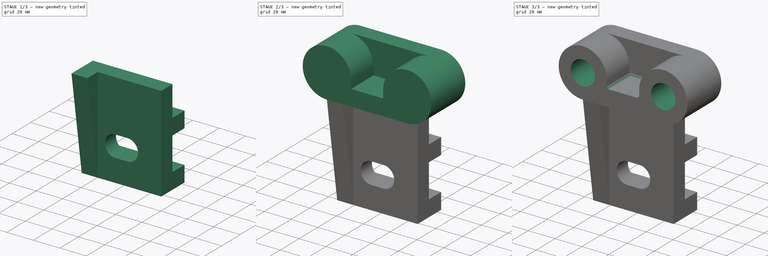
[diagram: build sequence overview — one tinted view per stage of 3, left to right]
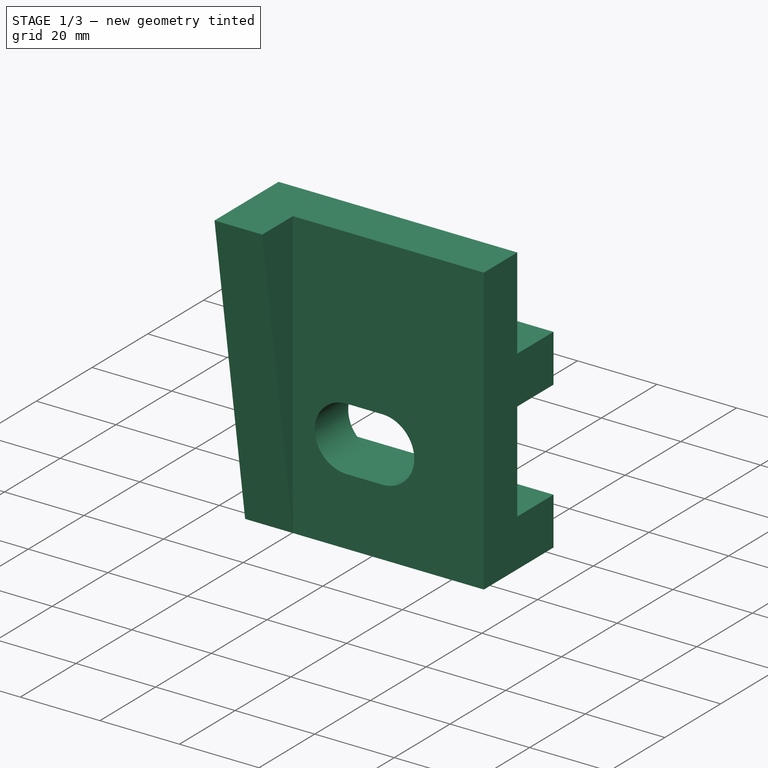
[diagram: stage 1 of 3 — iso view after this stage's code; geometry added in this stage tinted green]
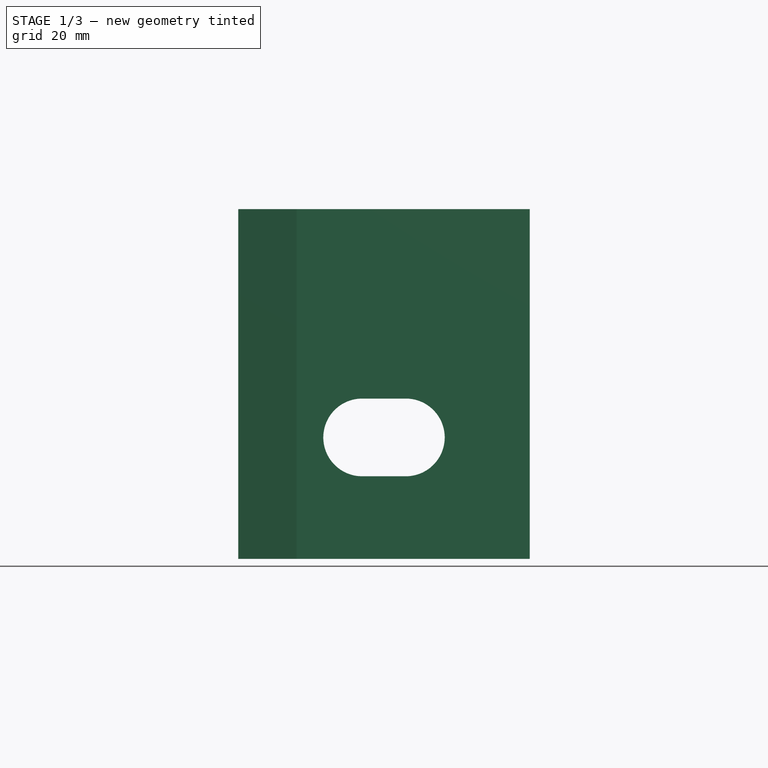
[diagram: stage 1 of 3 — front view after this stage's code; geometry added in this stage tinted green]
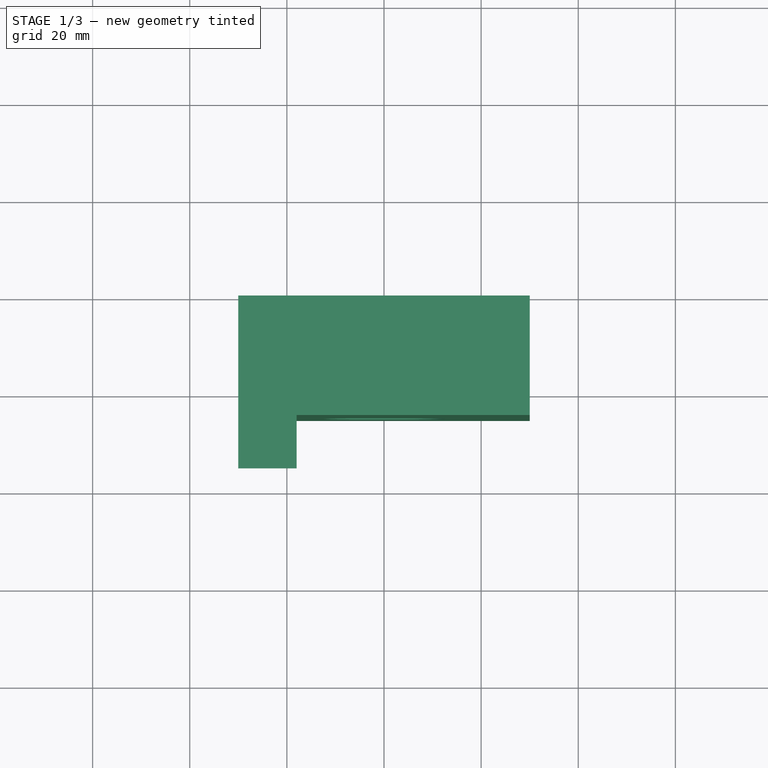
[diagram: stage 1 of 3 — top view after this stage's code; geometry added in this stage tinted green]
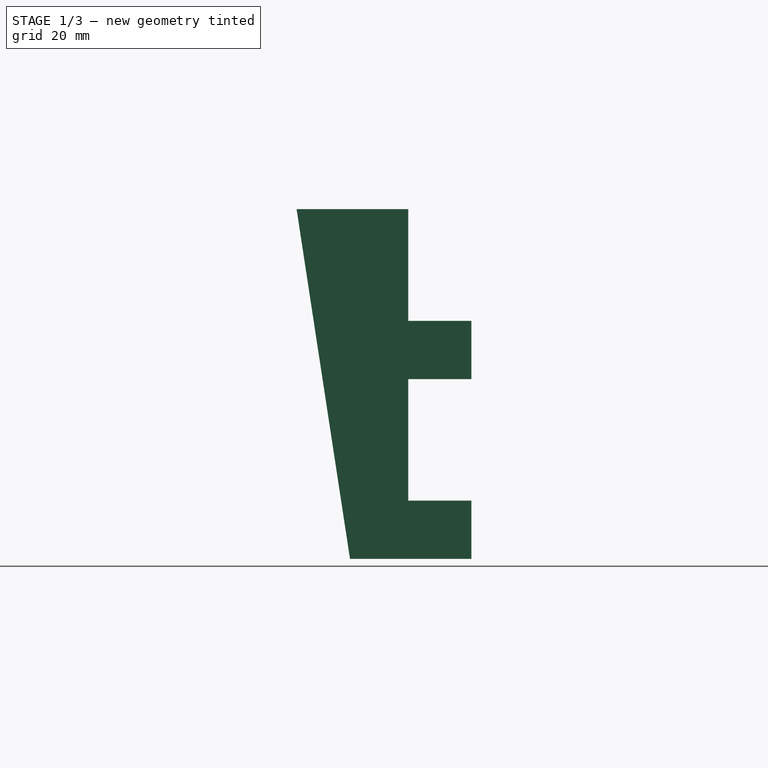
[diagram: stage 1 of 3 — right view after this stage's code; geometry added in this stage tinted green]
FCSTD DOCUMENT  (FreeCAD 0.16R)
Label: Fig 3.43 Final
License: All rights reserved
LicenseURL: http://en.wikipedia.org/wiki/All_rights_reserved
objects: Sketcher::SketchObject×6, PartDesign::Pad×4, PartDesign::Pocket×2, PartDesign::Fillet×1, Part::MultiFuse×1
note: 20 computed .brp shape members not serialized (recipe doc carries the construction recipe); baked Part::Feature solids carry a one-line shape summary decoded from their .brp

FEATURE [Sketcher::SketchObject] Sketch
  Placement = pos=(0,0,0) rot=(0.57735,0.57735,0.57735;2.0944rad)
  sketch-geometry (10):
    g0: LineSegment StartX=0 StartY=0 StartZ=0 EndX=-25 EndY=0 EndZ=0
    g1: LineSegment StartX=-25 StartY=0 StartZ=0 EndX=-25 EndY=72 EndZ=0
    g2: LineSegment StartX=-25 StartY=72 StartZ=0 EndX=-13 EndY=72 EndZ=0
    g3: LineSegment StartX=0 StartY=0 StartZ=0 EndX=0 EndY=12 EndZ=0
    g4: LineSegment StartX=0 StartY=12 StartZ=0 EndX=-13 EndY=12 EndZ=0
    g5: LineSegment StartX=-13 StartY=12 StartZ=0 EndX=-13 EndY=37 EndZ=0
    g6: LineSegment StartX=-13 StartY=37 StartZ=0 EndX=0 EndY=37 EndZ=0
    g7: LineSegment StartX=0 StartY=37 StartZ=0 EndX=0 EndY=49 EndZ=0
    g8: LineSegment StartX=0 StartY=49 StartZ=0 EndX=-13 EndY=49 EndZ=0
    g9: LineSegment StartX=-13 StartY=49 StartZ=0 EndX=-13 EndY=72 EndZ=0
  constraints (30):
    c: PointOnObject(g0,g-1)
    c: Horizontal(g0)
    c: Coincident(g0,g1)
    c: Vertical(g1)
    c: Coincident(g1,g2)
    c: Horizontal(g2)
    c: Coincident(g3,g-1)
    c: PointOnObject(g3,g-2)
    c: Coincident(g3,g4)
    c: Horizontal(g4)
    c: Coincident(g4,g5)
    c: Vertical(g5)
    c: Coincident(g5,g6)
    c: PointOnObject(g6,g-2)
    c: Coincident(g6,g7)
    c: Coincident(g7,g8)
    c: Horizontal(g8)
    c: Coincident(g8,g9)
    c: Coincident(g9,g2)
    c: Vertical(g9)
    c: DistanceX(g0,g0) = 25
    c: Coincident(g0,g3)
    c: DistanceY(g3,g3) = 12
    c: DistanceY(g5,g5) = 25
    c: Horizontal(g6)
    c: Vertical(g7)
    c: DistanceY(g7,g7) = 12
    c: DistanceY(g9,g9) = 23
    c: DistanceX(g1,g2) = 12
    c: DistanceX(g0,g5) = 12
FEATURE [PartDesign::Pad] Pad
  Length = 60
  Length2 = 100
  Midplane = true
  Placement = pos=(0,0,0) rot=(0.57735,0.57735,0.57735;2.0944rad)
  Sketch = -> Sketch
  Type = 0
FEATURE [Sketcher::SketchObject] Sketch001
  Placement = pos=(0,-25,0) rot=(0.57735,0.57735,-0.57735;2.0944rad)
  Support = -> Pad [Face2]
  sketch-geometry (4):
    g0: ArcOfCircle CenterX=-25 CenterY=4.5 CenterZ=0 NormalX=0 NormalY=0 NormalZ=1 Radius=8 StartAngle=0 EndAngle=3.14159
    g1: ArcOfCircle CenterX=-25 CenterY=-4.5 CenterZ=0 NormalX=0 NormalY=0 NormalZ=1 Radius=8 StartAngle=3.14159 EndAngle=6.28319
    g2: LineSegment StartX=-33 StartY=4.5 StartZ=0 EndX=-33 EndY=-4.5 EndZ=0
    g3: LineSegment StartX=-17 StartY=4.5 StartZ=0 EndX=-17 EndY=-4.5 EndZ=0
  constraints (10):
    c: Tangent(g0,g3) = 1.5708
    c: Tangent(g0,g2) = -1.5708
    c: Tangent(g2,g1) = -1.5708
    c: Tangent(g3,g1) = 1.5708
    c: Vertical(g2)
    c: Equal(g0,g1)
    c: DistanceX(g0,g-1) = 25
    c: Radius(g1) = 8
    c: Symmetric(g1,g0,g-1)
    c: DistanceY(g1,g0) = 9
FEATURE [PartDesign::Pocket] Pocket
  Length = 5
  Placement = pos=(0,0,0) rot=(0.57735,0.57735,0.57735;2.0944rad)
  Sketch = -> Sketch001
  Type = 1
FEATURE [Sketcher::SketchObject] Sketch005
  ExternalGeometry = -> [Pocket]
  Placement = pos=(-30,0,0) rot=(0.57735,0.57735,-0.57735;4.18879rad)
  Support = -> Pocket [Face4]
  sketch-geometry (3):
    g0: LineSegment StartX=-25 StartY=0 StartZ=0 EndX=-36 EndY=-72 EndZ=0
    g1: LineSegment StartX=-36 StartY=-72 StartZ=0 EndX=-25 EndY=-72 EndZ=0
    g2: LineSegment StartX=-25 StartY=-72 StartZ=0 EndX=-25 EndY=0 EndZ=0
  constraints (7):
    c: Coincident(g-3,g0)
    c: Coincident(g0,g1)
    c: Coincident(g1,g-3)
    c: Coincident(g1,g2)
    c: Coincident(g2,g0)
    c: Horizontal(g1)
    c: DistanceX(g0,g-1) = 36
FEATURE [PartDesign::Pad] Pad003
  Length = 12
  Length2 = 100
  Placement = pos=(0,0,0) rot=(0.57735,0.57735,0.57735;2.0944rad)
  Reversed = true
  Sketch = -> Sketch005
  Type = 0
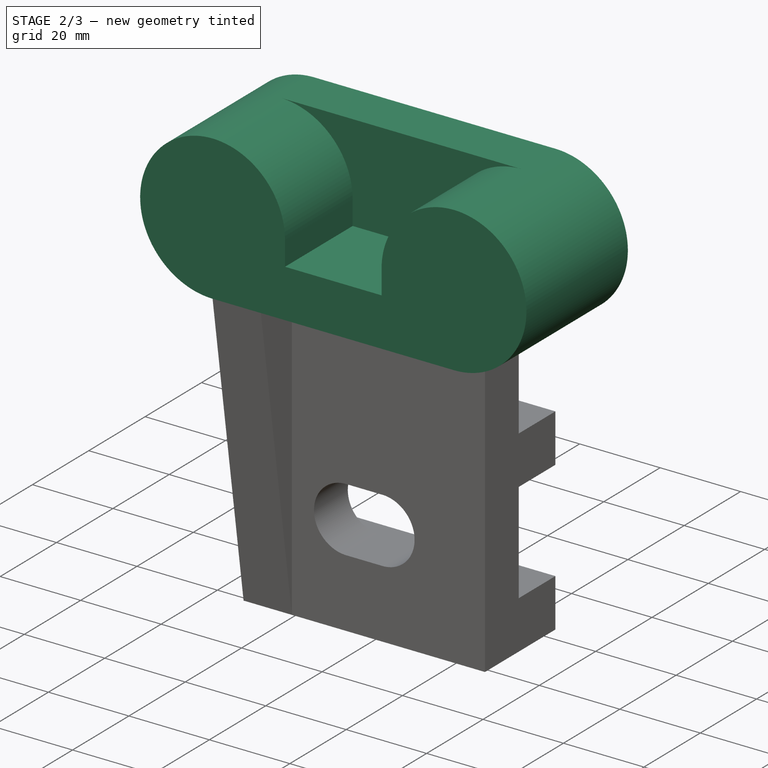
[diagram: stage 2 of 3 — iso view after this stage's code; geometry added in this stage tinted green]
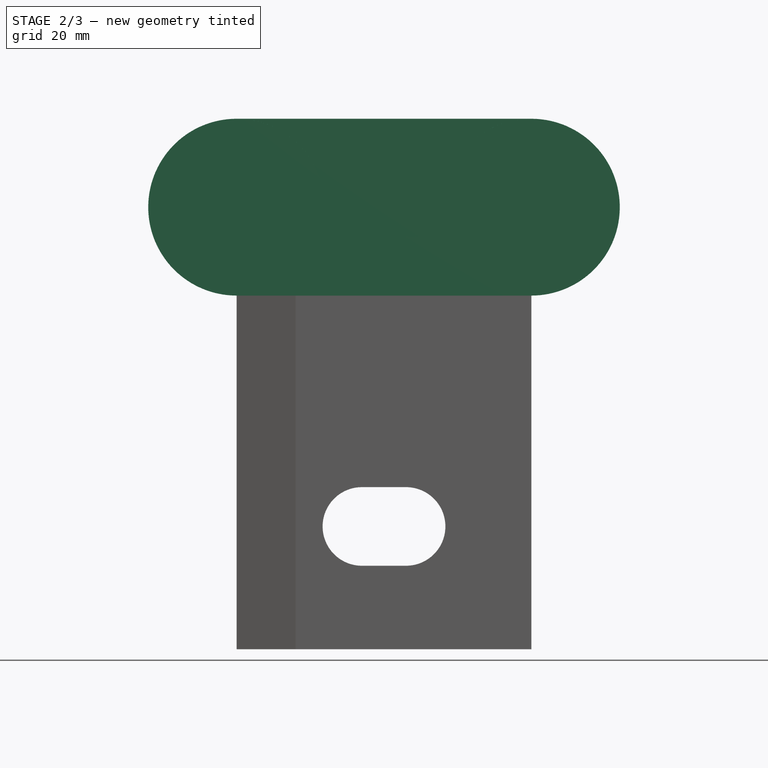
[diagram: stage 2 of 3 — front view after this stage's code; geometry added in this stage tinted green]
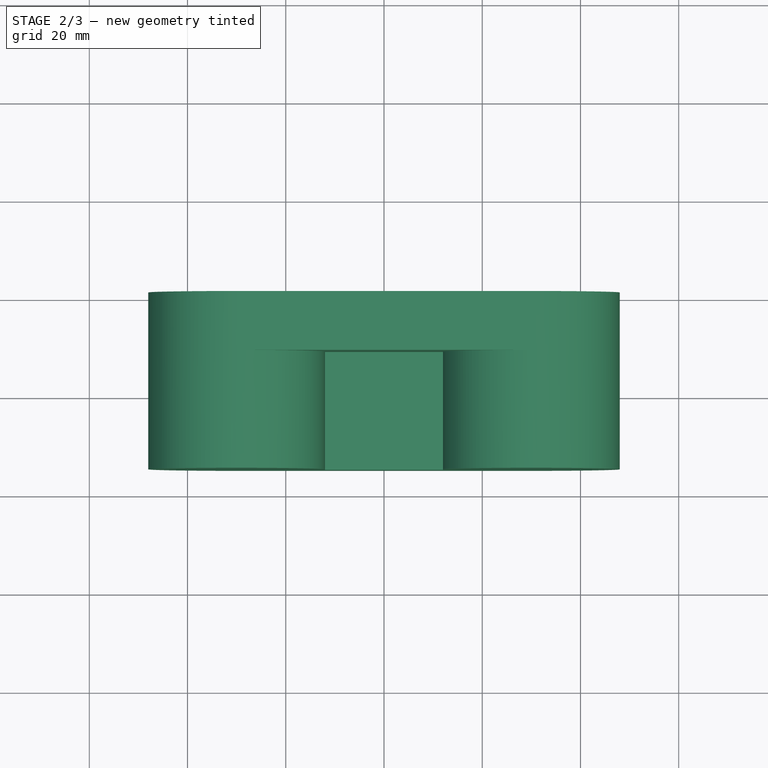
[diagram: stage 2 of 3 — top view after this stage's code; geometry added in this stage tinted green]
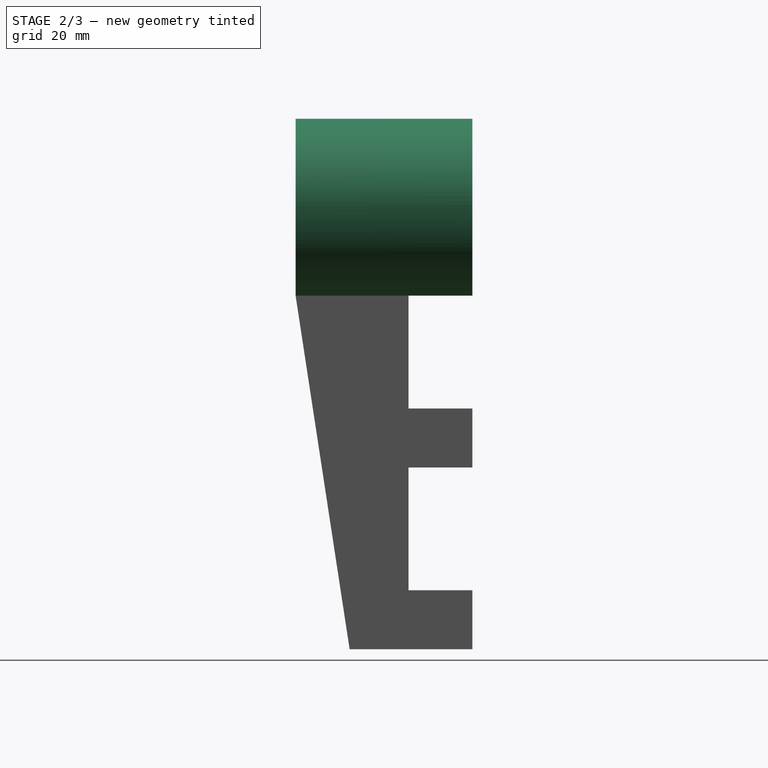
[diagram: stage 2 of 3 — right view after this stage's code; geometry added in this stage tinted green]
FEATURE [Sketcher::SketchObject] Sketch002
  Placement = pos=(0,0,0) rot=(-1,0,0;4.71239rad)
  sketch-geometry (6):
    g0: LineSegment StartX=-30 StartY=72 StartZ=0 EndX=30 EndY=72 EndZ=0
    g1: LineSegment StartX=-12 StartY=84 StartZ=0 EndX=12 EndY=84 EndZ=0
    g2: ArcOfCircle CenterX=-30 CenterY=90 CenterZ=0 NormalX=0 NormalY=0 NormalZ=1 Radius=18 StartAngle=6.28319 EndAngle=10.9956
    g3: ArcOfCircle CenterX=30 CenterY=90 CenterZ=0 NormalX=0 NormalY=0 NormalZ=1 Radius=18 StartAngle=4.71239 EndAngle=9.42478
    g4: LineSegment StartX=12 StartY=84 StartZ=0 EndX=12 EndY=90 EndZ=0
    g5: LineSegment StartX=-12 StartY=84 StartZ=0 EndX=-12 EndY=90 EndZ=0
  constraints (18):
    c: Horizontal(g0)
    c: Horizontal(g1)
    c: Symmetric(g3,g2,g-2)
    c: DistanceY(g-1,g2) = 90
    c: Radius(g3) = 18
    c: Equal(g3,g2)
    c: DistanceX(g2,g3) = 60
    c: Coincident(g3,g0)
    c: Coincident(g2,g0)
    c: DistanceY(g0,g1) = 12
    c: Symmetric(g1,g1,g-2)
    c: Vertical(g4)
    c: Vertical(g5)
    c: Coincident(g5,g2)
    c: Coincident(g1,g5)
    c: Coincident(g4,g3)
    c: Coincident(g1,g4)
    c: Tangent(g5,g2)
FEATURE [PartDesign::Pad] Pad001
  Length = 36
  Length2 = 100
  Placement = pos=(0,0,0) rot=(-1,0,0;4.71239rad)
  Sketch = -> Sketch002
  Type = 0
FEATURE [Sketcher::SketchObject] Sketch003
  ExternalGeometry = -> [Pad001]
  Placement = pos=(0,0,0) rot=(-1,0,0;1.5708rad)
  Support = -> Pad001 [Face7]
  sketch-geometry (4):
    g0: ArcOfCircle CenterX=-30 CenterY=-90 CenterZ=0 NormalX=0 NormalY=0 NormalZ=1 Radius=18 StartAngle=1.5708 EndAngle=4.71239
    g1: ArcOfCircle CenterX=30 CenterY=-90 CenterZ=0 NormalX=0 NormalY=0 NormalZ=1 Radius=18 StartAngle=4.71239 EndAngle=7.85398
    g2: LineSegment StartX=-30 StartY=-108 StartZ=0 EndX=30 EndY=-108 EndZ=0
    g3: LineSegment StartX=-30 StartY=-72 StartZ=0 EndX=30 EndY=-72 EndZ=0
  constraints (9):
    c: Tangent(g0,g3) = 1.5708
    c: Tangent(g0,g2) = -1.5708
    c: Tangent(g2,g1) = -1.5708
    c: Tangent(g3,g1) = 1.5708
    c: Horizontal(g2)
    c: Equal(g0,g1)
    c: Coincident(g-4,g0)
    c: Coincident(g1,g-3)
    c: Equal(g1,g-3)
FEATURE [PartDesign::Pad] Pad002
  Length = 12
  Length2 = 100
  Placement = pos=(0,0,0) rot=(-1,0,0;4.71239rad)
  Reversed = true
  Sketch = -> Sketch003
  Type = 0
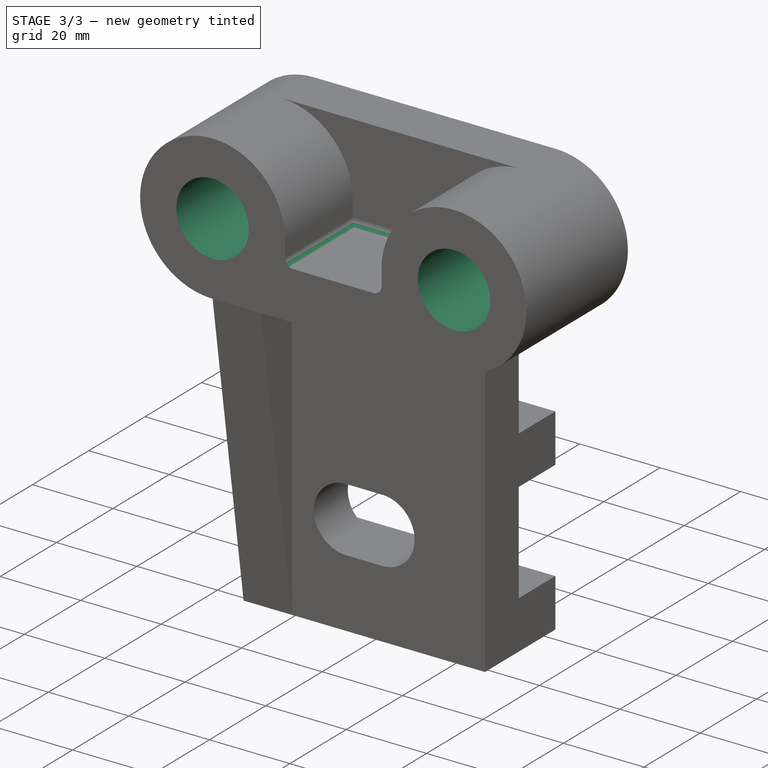
[diagram: stage 3 of 3 — iso view after this stage's code; geometry added in this stage tinted green]
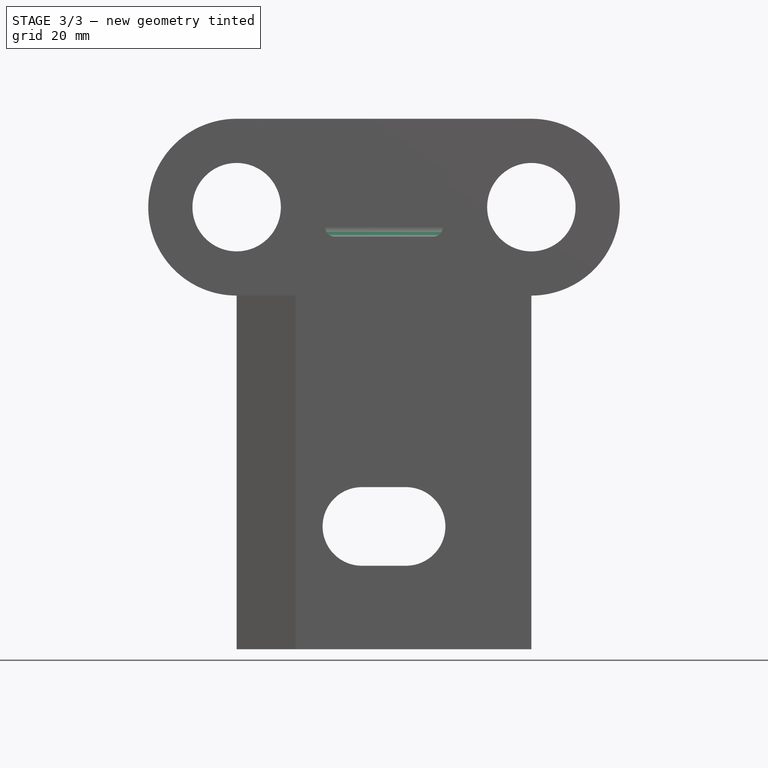
[diagram: stage 3 of 3 — front view after this stage's code; geometry added in this stage tinted green]
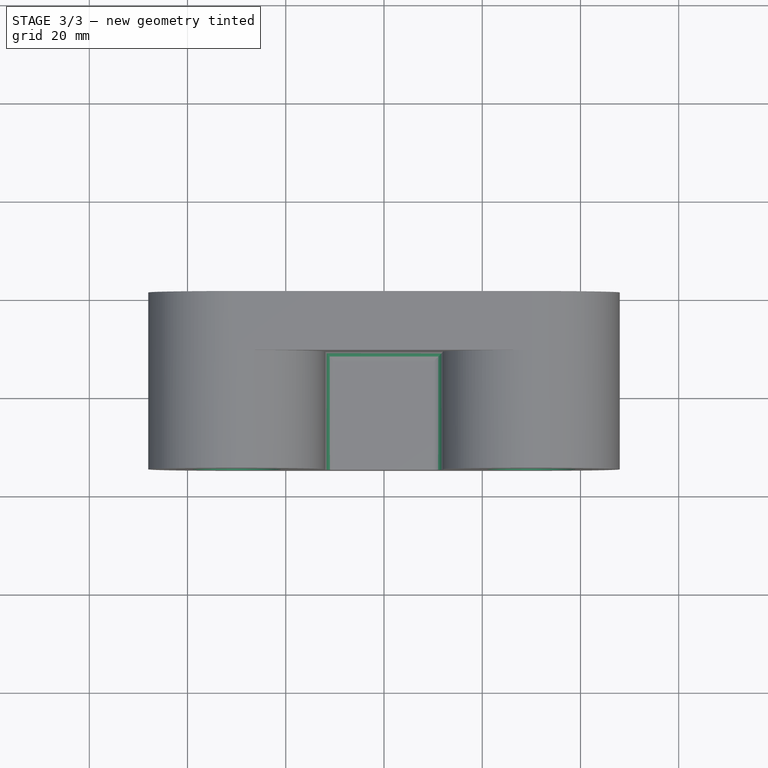
[diagram: stage 3 of 3 — top view after this stage's code; geometry added in this stage tinted green]
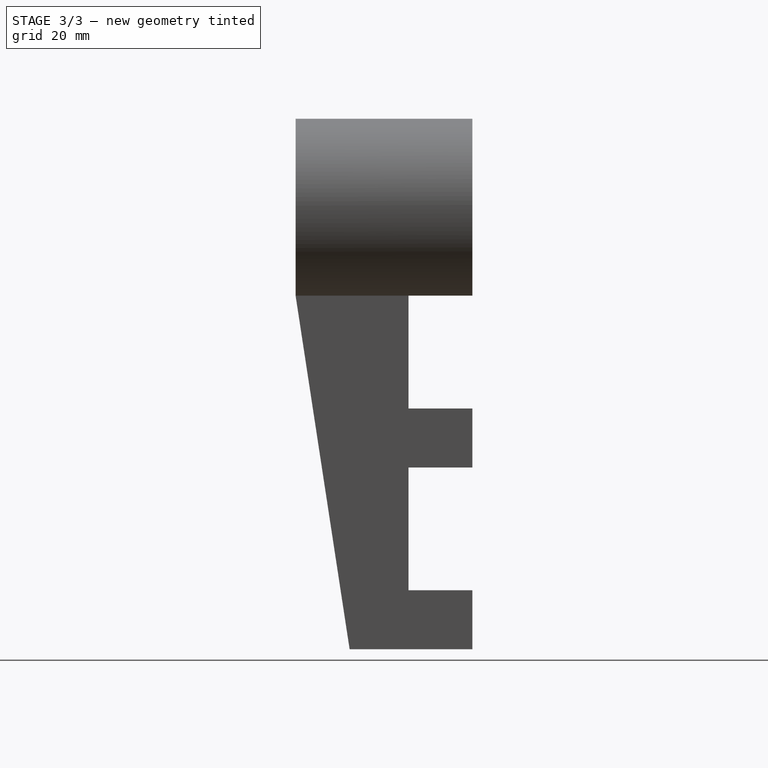
[diagram: stage 3 of 3 — right view after this stage's code; geometry added in this stage tinted green]
FEATURE [Sketcher::SketchObject] Sketch004
  ExternalGeometry = -> [Pad002]
  Placement = pos=(0,-36,0) rot=(1,0,0;1.5708rad)
  Support = -> Pad002 [Face1]
  sketch-geometry (2):
    g0: Circle CenterX=30 CenterY=90 CenterZ=0 NormalX=0 NormalY=0 NormalZ=1 Radius=9
    g1: Circle CenterX=-30 CenterY=90 CenterZ=0 NormalX=0 NormalY=0 NormalZ=1 Radius=9
  constraints (4):
    c: Coincident(g0,g-3)
    c: Coincident(g1,g-4)
    c: Equal(g1,g0)
    c: Radius(g1) = 9
FEATURE [PartDesign::Pocket] Pocket001
  Length = 5
  Placement = pos=(0,0,0) rot=(-1,0,0;4.71239rad)
  Sketch = -> Sketch004
  Type = 1
FEATURE [PartDesign::Fillet] Fillet
  Base = -> Pocket001 [Edge13,Edge12,Edge11]
  Placement = pos=(0,0,0) rot=(-1,0,0;4.71239rad)
  Radius = 2
FEATURE [Part::MultiFuse] Fusion
  Shapes = -> [Fillet,Pad003]
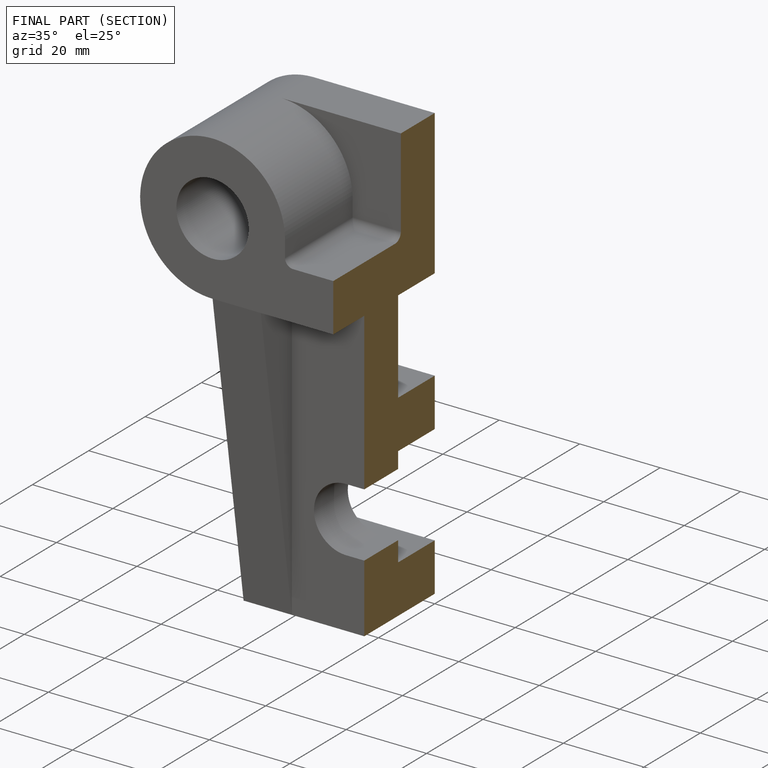
[diagram: finished part — half-section view (interior)]
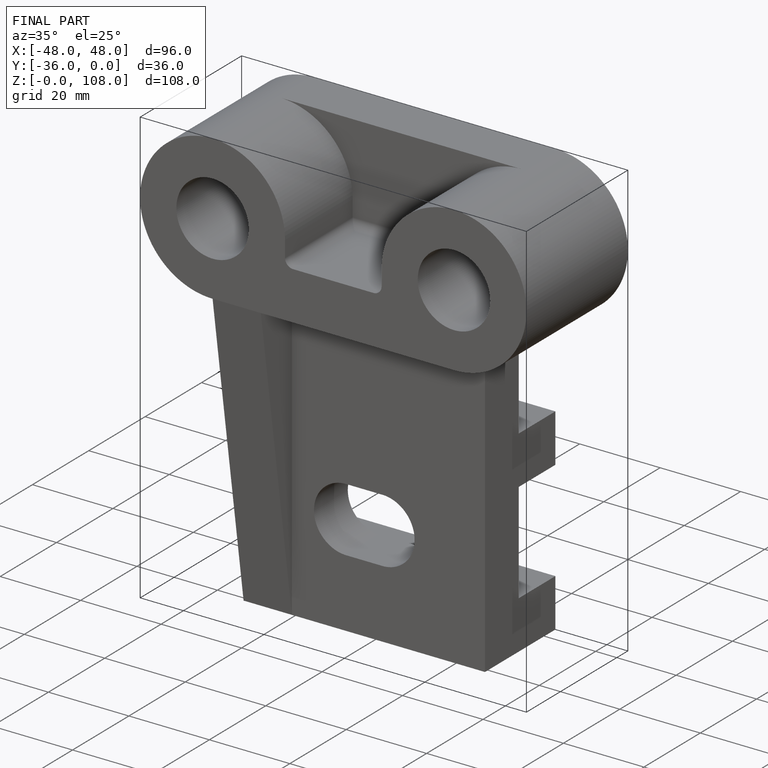
[diagram: finished part — iso view with bounding-box wireframe]
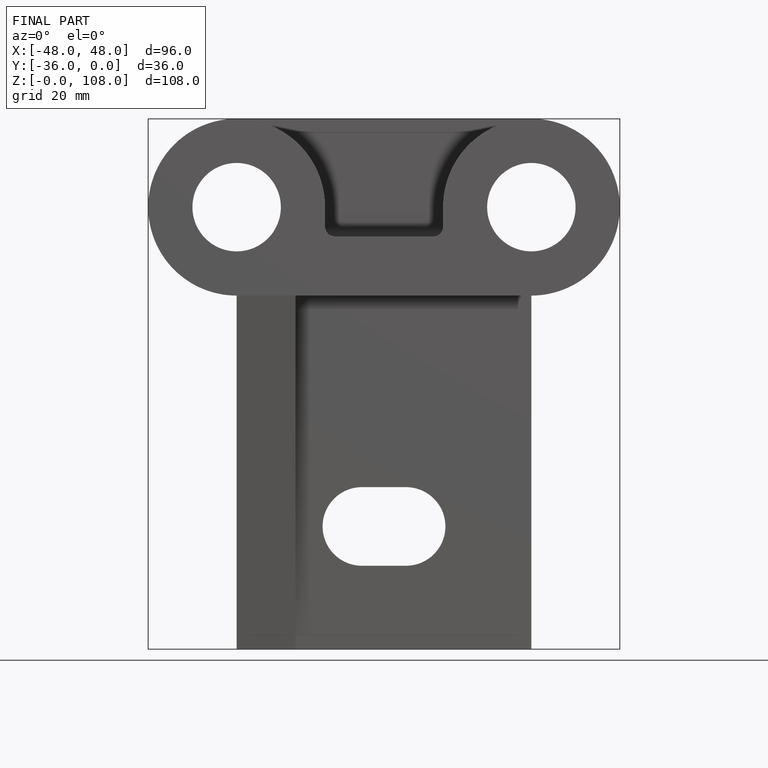
[diagram: finished part — front view with bounding-box wireframe]
